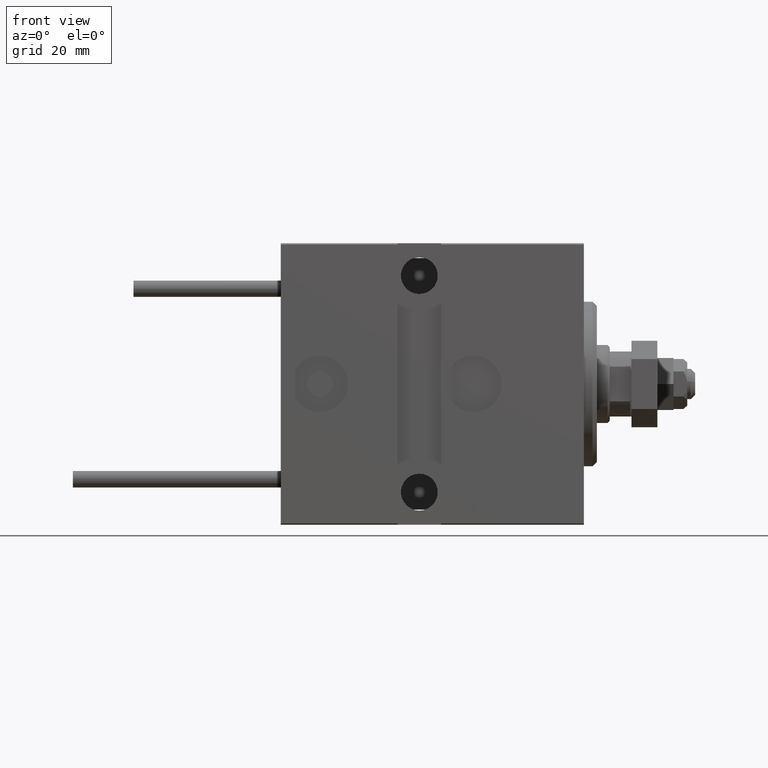
[diagram: clean part render]
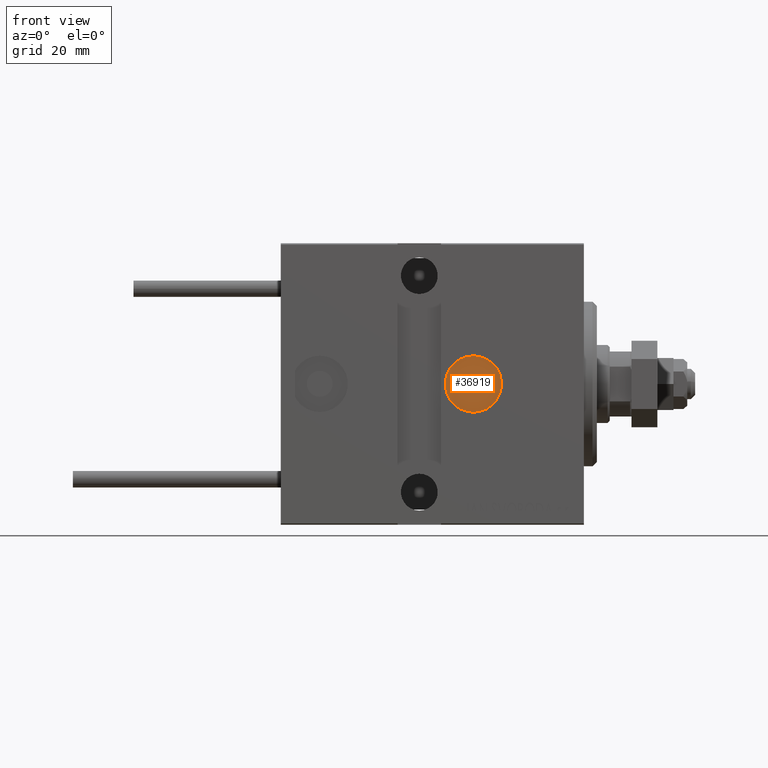
[diagram: same view with one face highlighted and labeled with its STEP entity id]
A machine part, front view. The second image highlights one B-rep face of the part: STEP entity #36919.
In plain terms, the highlighted planar face has unit normal (-0, -1, 0).
Its self-contained STEP definition (entity closure, byte-faithful):
#787 = CIRCLE ( 'NONE', #5583, 6.499999999999997335 ) ;
#2444 = EDGE_LOOP ( 'NONE', ( #14129, #47503 ) ) ;
#4344 = DIRECTION ( 'NONE',  ( 0.000000000000000000, -8.851255261214056290E-17, 1.000000000000000000 ) ) ;
#5583 = AXIS2_PLACEMENT_3D ( 'NONE', #25927, #41437, #14646 ) ;
#8364 = CARTESIAN_POINT ( 'NONE',  ( 25.50000000000000000, 21.50000000000000000, 2.275763105547195299E-15 ) ) ;
#14129 = ORIENTED_EDGE ( 'NONE', *, *, #27731, .T. ) ;
#14646 = DIRECTION ( 'NONE',  ( 0.000000000000000000, 0.000000000000000000, 1.000000000000000000 ) ) ;
#15379 = DIRECTION ( 'NONE',  ( 1.848892746611746419E-32, 1.000000000000000000, 8.851255261214056290E-17 ) ) ;
#19345 = AXIS2_PLACEMENT_3D ( 'NONE', #27400, #15379, #4344 ) ;
#22897 = PLANE ( 'NONE',  #19345 ) ;
#25927 = CARTESIAN_POINT ( 'NONE',  ( 25.50000000000000000, 21.50000000000000000, 2.275763105547195299E-15 ) ) ;
#26565 = VERTEX_POINT ( 'NONE', #34600 ) ;
#27400 = CARTESIAN_POINT ( 'NONE',  ( 4.160008679876429443E-31, 21.50000000000000000, 1.865370726429394705E-15 ) ) ;
#27731 = EDGE_CURVE ( 'NONE', #26565, #31134, #787, .T. ) ;
#30909 = FACE_OUTER_BOUND ( 'NONE', #2444, .T. ) ;
#31134 = VERTEX_POINT ( 'NONE', #39550 ) ;
#34440 = DIRECTION ( 'NONE',  ( 1.848892746611746419E-32, 1.000000000000000000, 8.851255261214056290E-17 ) ) ;
#34600 = CARTESIAN_POINT ( 'NONE',  ( 25.50000000000000000, 21.50000000000000000, 6.500000000000000000 ) ) ;
#36919 = ADVANCED_FACE ( 'NONE', ( #30909 ), #22897, .T. ) ;
#37094 = AXIS2_PLACEMENT_3D ( 'NONE', #8364, #34440, #38930 ) ;
#38930 = DIRECTION ( 'NONE',  ( 0.000000000000000000, 0.000000000000000000, 1.000000000000000000 ) ) ;
#39550 = CARTESIAN_POINT ( 'NONE',  ( 25.50000000000000000, 21.50000000000000000, -6.499999999999994671 ) ) ;
#41437 = DIRECTION ( 'NONE',  ( 1.848892746611746419E-32, 1.000000000000000000, 8.851255261214056290E-17 ) ) ;
#43537 = EDGE_CURVE ( 'NONE', #31134, #26565, #45901, .T. ) ;
#45901 = CIRCLE ( 'NONE', #37094, 6.499999999999997335 ) ;
#47503 = ORIENTED_EDGE ( 'NONE', *, *, #43537, .T. ) ;